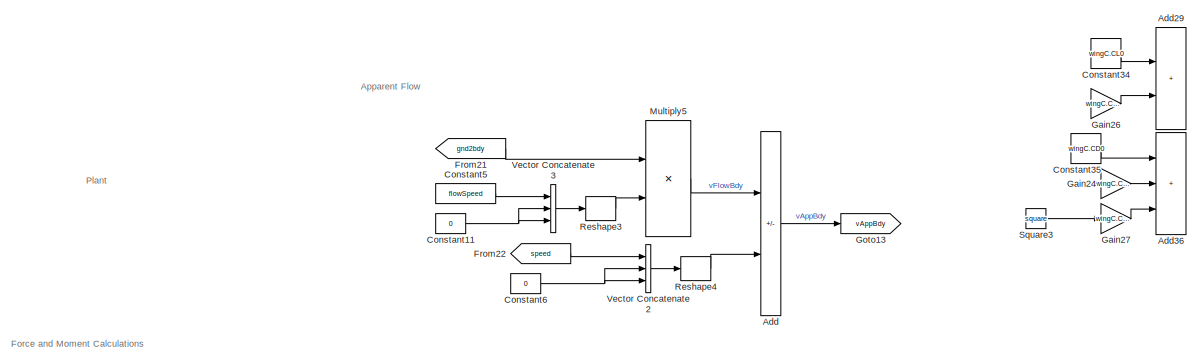
[diagram: root canvas - part 1/8, top center region]
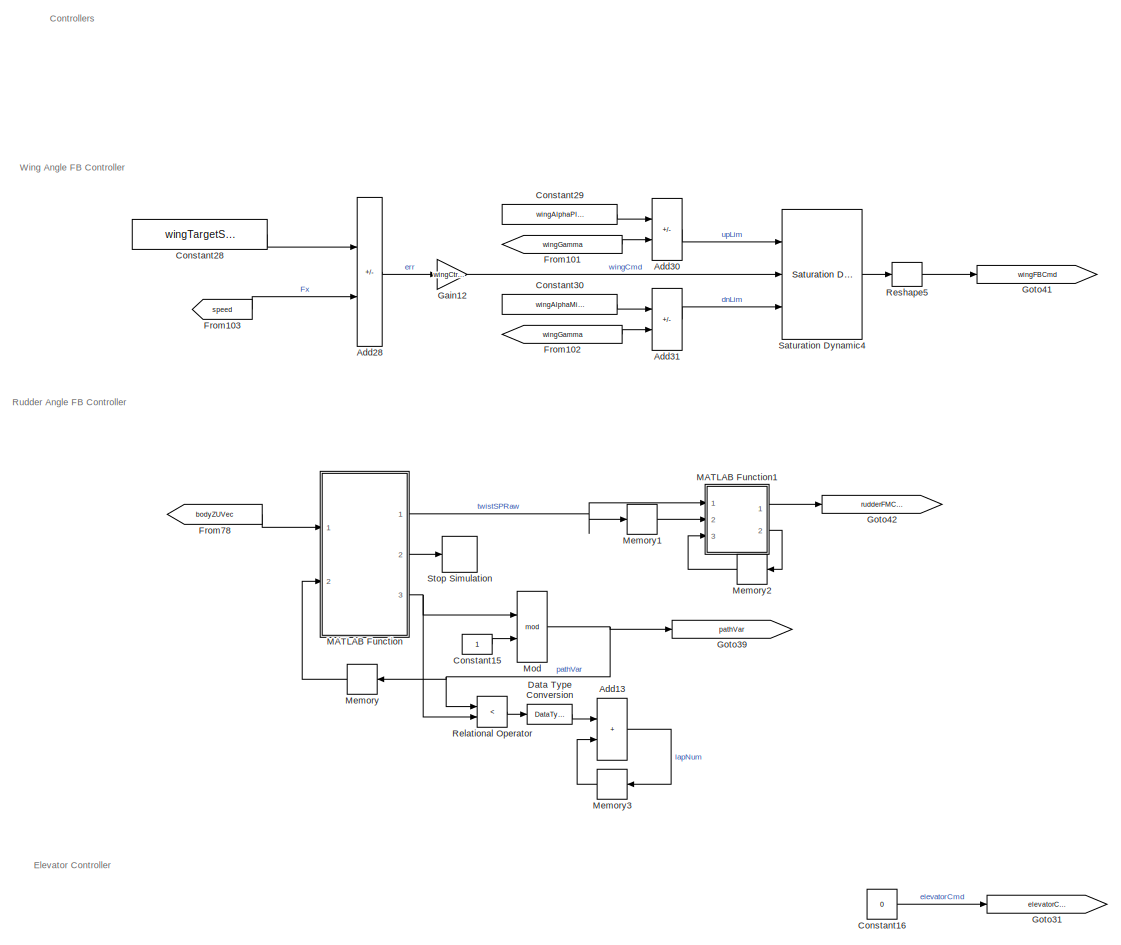
[diagram: root canvas - part 2/8, middle left region]
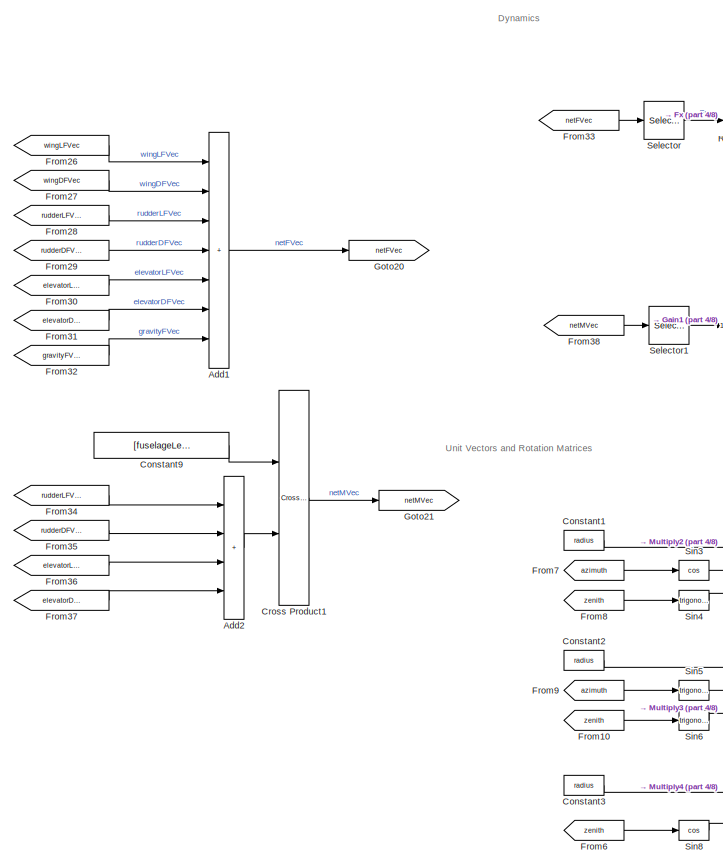
[diagram: root canvas - part 3/8, middle right region]
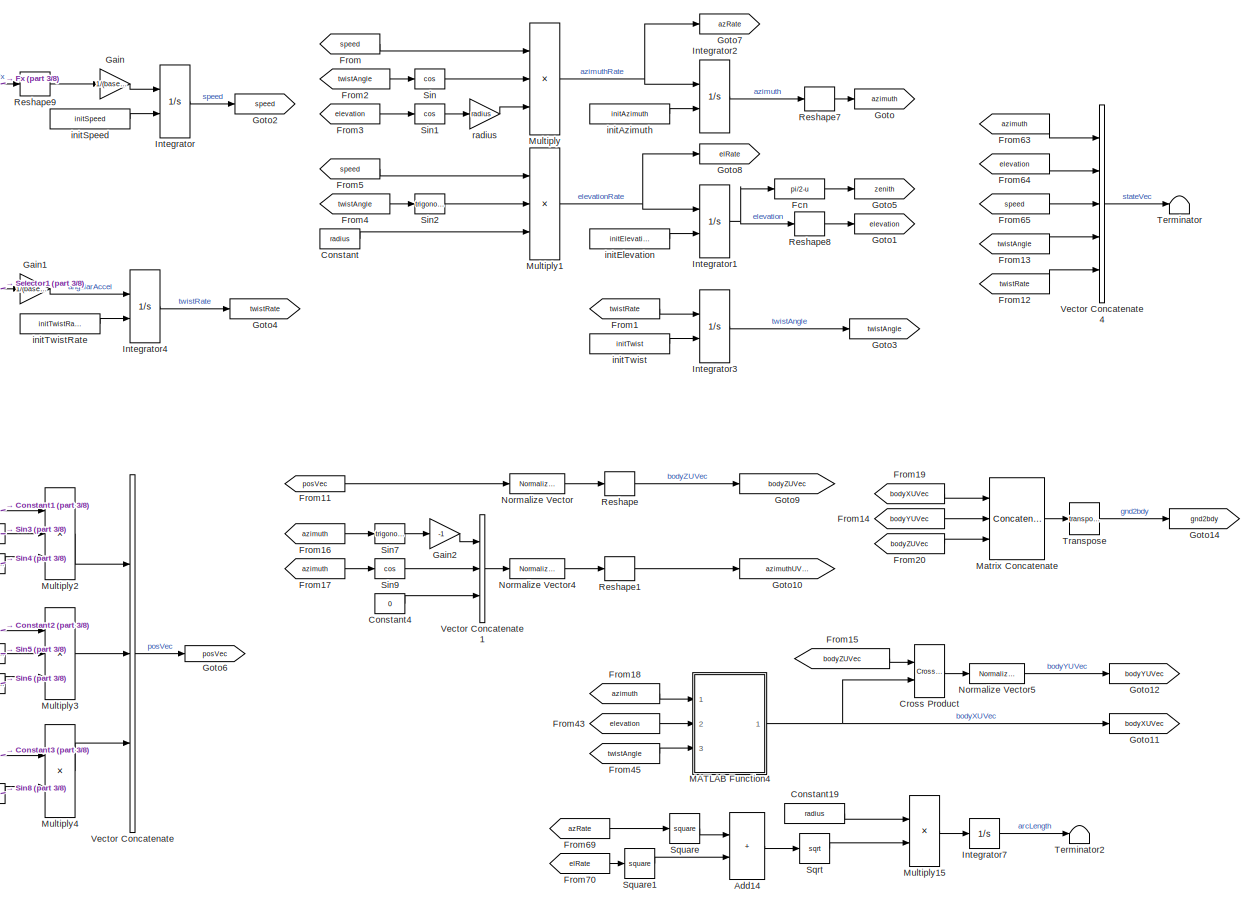
[diagram: root canvas - part 4/8, middle right region]
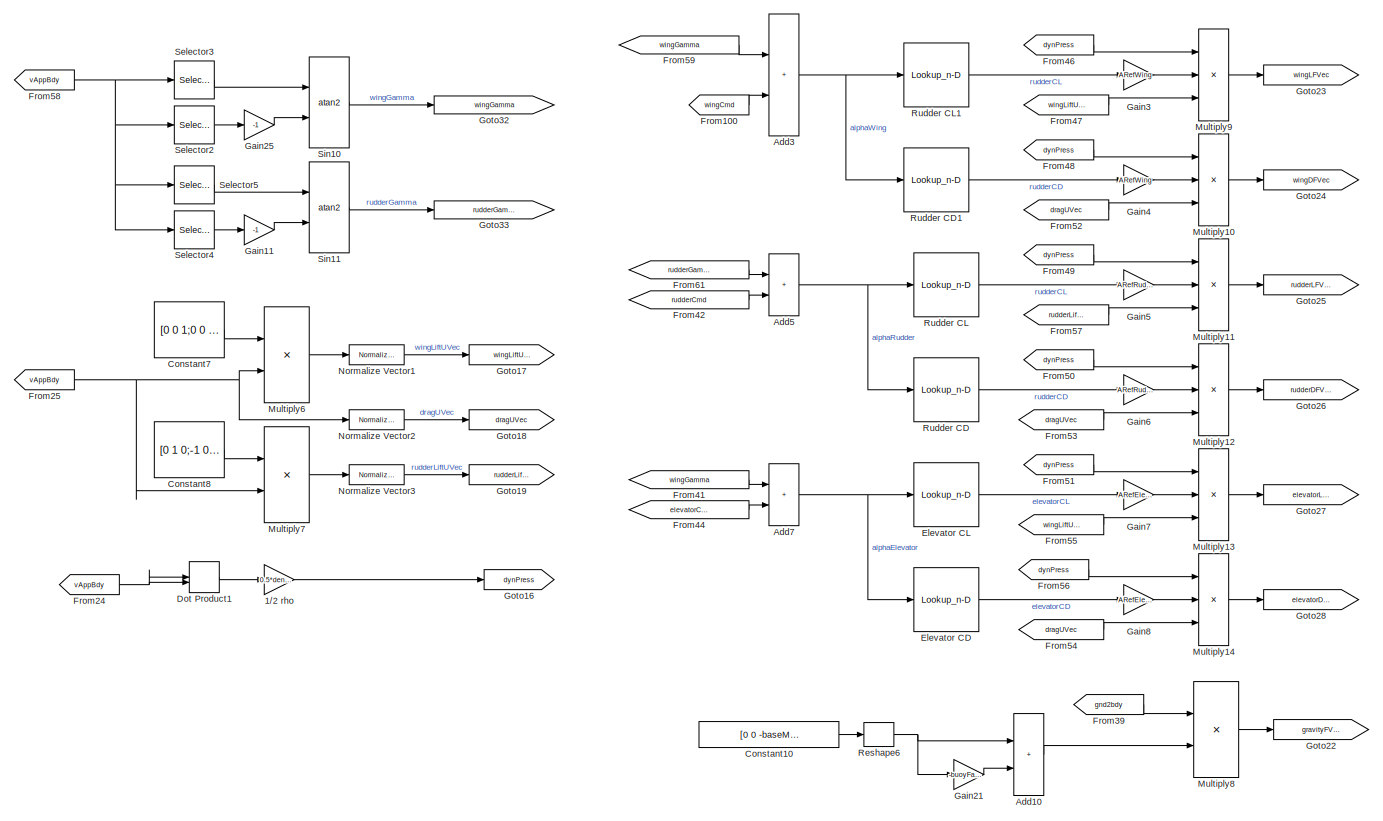
[diagram: root canvas - part 5/8, central region]
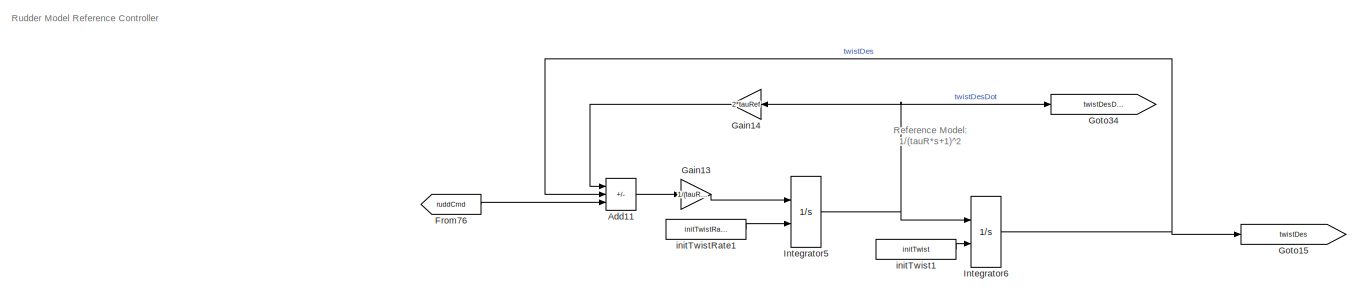
[diagram: root canvas - part 6/8, central region]
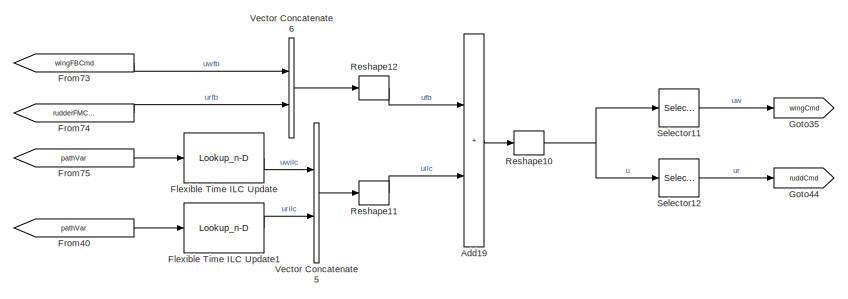
[diagram: root canvas - part 7/8, middle left region]
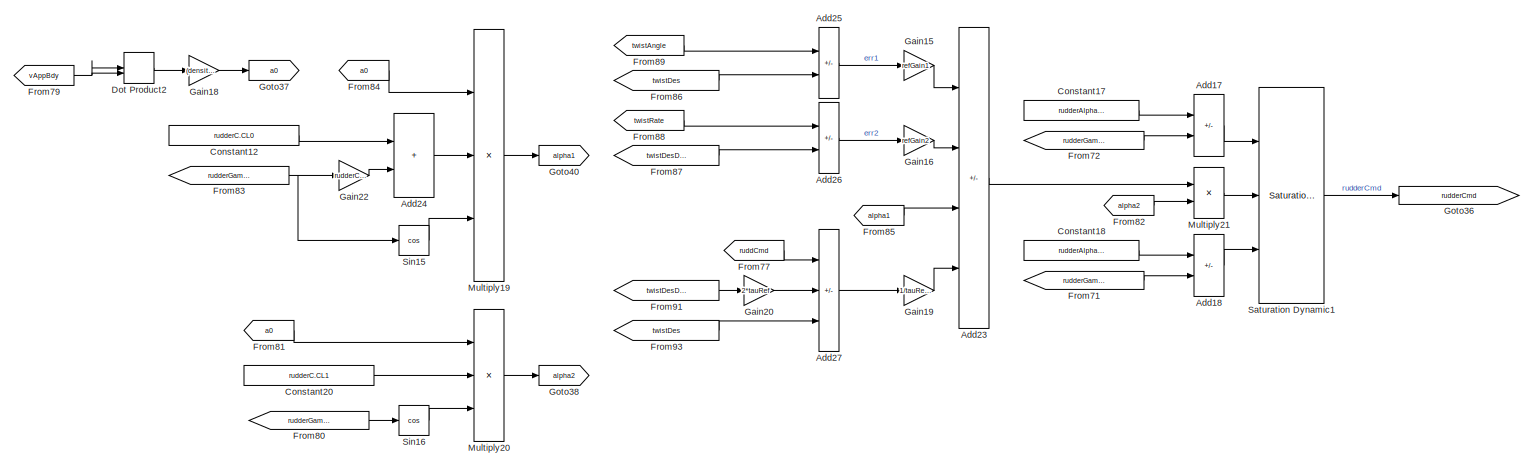
[diagram: root canvas - part 8/8, bottom center region]
MODEL slx_434c919a1d48
KIND model
CONFIG AbsTol = auto
CONFIG EnableMultiTasking = off
CONFIG FixedStep = auto
CONFIG MaxStep = auto
CONFIG MinStep = auto
CONFIG RelTol = 1e-3
CONFIG SampleTimeConstraint = Unconstrained
CONFIG Solver = ode23s
CONFIG SolverName = ode23s
CONFIG StartTime = 0.0
CONFIG StopTime = T
BLOCK [Gain] 1//2 rho
  Gain = 0.5*density
BLOCK [Sum] Add
  IconShape = rectangular
  Inputs = +-
  Ports = [2, 1]
BLOCK [Sum] Add1
  IconShape = rectangular
  Inputs = +++++++
  Ports = [7, 1]
BLOCK [Sum] Add10
  IconShape = rectangular
  Ports = [2, 1]
BLOCK [Sum] Add11
  IconShape = rectangular
  Inputs = --+
  Ports = [3, 1]
BLOCK [Sum] Add13
  IconShape = rectangular
  Ports = [2, 1]
BLOCK [Sum] Add14
  IconShape = rectangular
  Ports = [2, 1]
BLOCK [Sum] Add17
  IconShape = rectangular
  Inputs = +-
  Ports = [2, 1]
BLOCK [Sum] Add18
  IconShape = rectangular
  Inputs = +-
  Ports = [2, 1]
BLOCK [Sum] Add19
  IconShape = rectangular
  Ports = [2, 1]
BLOCK [Sum] Add2
  IconShape = rectangular
  Inputs = ++++
  Ports = [4, 1]
BLOCK [Sum] Add23
  IconShape = rectangular
  Inputs = ---+
  Ports = [4, 1]
BLOCK [Sum] Add24
  IconShape = rectangular
  Ports = [2, 1]
BLOCK [Sum] Add25
  IconShape = rectangular
  Inputs = +-
  Ports = [2, 1]
BLOCK [Sum] Add26
  IconShape = rectangular
  Inputs = +-
  Ports = [2, 1]
BLOCK [Sum] Add27
  IconShape = rectangular
  Inputs = +--
  Ports = [3, 1]
BLOCK [Sum] Add28
  IconShape = rectangular
  Inputs = +-
  Ports = [2, 1]
BLOCK [Sum] Add29
  Commented = on
  IconShape = rectangular
  Ports = [2, 1]
BLOCK [Sum] Add3
  IconShape = rectangular
  Ports = [2, 1]
BLOCK [Sum] Add30
  IconShape = rectangular
  Inputs = +-
  Ports = [2, 1]
BLOCK [Sum] Add31
  IconShape = rectangular
  Inputs = +-
  Ports = [2, 1]
BLOCK [Sum] Add36
  Commented = on
  IconShape = rectangular
  Inputs = +++
  Ports = [3, 1]
BLOCK [Sum] Add5
  IconShape = rectangular
  Ports = [2, 1]
BLOCK [Sum] Add7
  IconShape = rectangular
  Ports = [2, 1]
BLOCK [Constant] Constant
  Value = radius
BLOCK [Constant] Constant1
  Value = radius
BLOCK [Constant] Constant10
  Value = [0 0 -baseMass*9.81]
BLOCK [Constant] Constant11
  Value = 0
BLOCK [Constant] Constant12
  Value = rudderC.CL0
BLOCK [Constant] Constant15
BLOCK [Constant] Constant16
  Value = 0
BLOCK [Constant] Constant17
  Value = rudderAlphaPlusStall
BLOCK [Constant] Constant18
  Value = rudderAlphaMinusStall
BLOCK [Constant] Constant19
  Value = radius
BLOCK [Constant] Constant2
  Value = radius
BLOCK [Constant] Constant20
  Value = rudderC.CL1
BLOCK [Constant] Constant28
  Value = wingTargetSpeed
BLOCK [Constant] Constant29
  Value = wingAlphaPlusStall
BLOCK [Constant] Constant3
  Value = radius
BLOCK [Constant] Constant30
  Value = wingAlphaMinusStall
BLOCK [Constant] Constant34
  Commented = on
  Value = wingC.CL0
BLOCK [Constant] Constant35
  Commented = on
  Value = wingC.CD0
BLOCK [Constant] Constant4
  Commented = on
  Value = 0
BLOCK [Constant] Constant5
  Value = flowSpeed
BLOCK [Constant] Constant6
  Value = 0
BLOCK [Constant] Constant7
  Value = [0 0 1;0 0 0;-1 0 0]
BLOCK [Constant] Constant8
  Value = [0 1 0;-1 0 0;0 0 0]
BLOCK [Constant] Constant9
  Value = [fuselageLength 0 0]
BLOCK [Reference] Cross Product  REF=vrlib/Utilities/Cross Product
  Ports = [2, 1]
  SourceBlock = vrlib/Utilities/Cross Product
  SourceProductBaseCode = SL
  SourceType = Cross Product
BLOCK [Reference] Cross Product1  REF=vrlib/Utilities/Cross Product
  Ports = [2, 1]
  SourceBlock = vrlib/Utilities/Cross Product
  SourceProductBaseCode = SL
  SourceType = Cross Product
BLOCK [DataTypeConversion] Data Type Conversion
  OutDataTypeStr = double
  RndMeth = Floor
  SaturateOnIntegerOverflow = off
BLOCK [DotProduct] Dot Product1
  OutDataTypeStr = Inherit: Inherit via internal rule
BLOCK [DotProduct] Dot Product2
  OutDataTypeStr = Inherit: Inherit via internal rule
BLOCK [Lookup_n-D] Elevator CD
  BreakpointsForDimension1 = rudderTable.alpha
  InternalRulePriority = Speed
  NumberOfTableDimensions = 1
  Ports = [1, 1]
  RndMeth = Simplest
  Table = rudderTable.CD
BLOCK [Lookup_n-D] Elevator CL
  BreakpointsForDimension1 = rudderTable.alpha
  InternalRulePriority = Speed
  NumberOfTableDimensions = 1
  Ports = [1, 1]
  RndMeth = Simplest
  Table = rudderTable.CL
BLOCK [Fcn] Fcn
  Expr = pi/2-u
BLOCK [Lookup_n-D] Flexible Time ILC Update
  BeginIndexSearchUsingPreviousIndexResult = on
  BreakpointsForDimension1 = uwilcNext.Time(:)
  ExtrapMethod = Clip
  InternalRulePriority = Speed
  InterpMethod = Flat
  NumberOfTableDimensions = 1
  Ports = [1, 1]
  RndMeth = Simplest
  Table = uwilcNext.Data(:)
  UseLastTableValue = on
BLOCK [Lookup_n-D] Flexible Time ILC Update1
  BreakpointsForDimension1 = urilcNext.Time(:)
  ExtrapMethod = Clip
  InternalRulePriority = Speed
  InterpMethod = Flat
  NumberOfTableDimensions = 1
  Ports = [1, 1]
  RndMeth = Simplest
  Table = urilcNext.Data(:)
  UseLastTableValue = on
BLOCK [From] From
  GotoTag = speed
BLOCK [From] From1
  GotoTag = twistRate
BLOCK [From] From10
  GotoTag = zenith
BLOCK [From] From100
  GotoTag = wingCmd
BLOCK [From] From101
  GotoTag = wingGamma
BLOCK [From] From102
  GotoTag = wingGamma
BLOCK [From] From103
  GotoTag = speed
BLOCK [From] From11
  GotoTag = posVec
BLOCK [From] From12
  GotoTag = twistRate
BLOCK [From] From13
  GotoTag = twistAngle
BLOCK [From] From14
  GotoTag = bodyYUVec
BLOCK [From] From15
  GotoTag = bodyZUVec
BLOCK [From] From16
  Commented = on
  GotoTag = azimuth
BLOCK [From] From17
  Commented = on
  GotoTag = azimuth
BLOCK [From] From18
  GotoTag = azimuth
BLOCK [From] From19
  GotoTag = bodyXUVec
BLOCK [From] From2
  GotoTag = twistAngle
BLOCK [From] From20
  GotoTag = bodyZUVec
BLOCK [From] From21
  GotoTag = gnd2bdy
BLOCK [From] From22
  GotoTag = speed
BLOCK [From] From24
  GotoTag = vAppBdy
BLOCK [From] From25
  GotoTag = vAppBdy
BLOCK [From] From26
  GotoTag = wingLFVec
BLOCK [From] From27
  GotoTag = wingDFVec
BLOCK [From] From28
  GotoTag = rudderLFVec
BLOCK [From] From29
  GotoTag = rudderDFVec
BLOCK [From] From3
  GotoTag = elevation
BLOCK [From] From30
  GotoTag = elevatorLFVec
BLOCK [From] From31
  GotoTag = elevatorDFVec
BLOCK [From] From32
  GotoTag = gravityFVec
BLOCK [From] From33
  GotoTag = netFVec
BLOCK [From] From34
  GotoTag = rudderLFVec
BLOCK [From] From35
  GotoTag = rudderDFVec
BLOCK [From] From36
  GotoTag = elevatorLFVec
BLOCK [From] From37
  GotoTag = elevatorDFVec
BLOCK [From] From38
  GotoTag = netMVec
BLOCK [From] From39
  GotoTag = gnd2bdy
BLOCK [From] From4
  GotoTag = twistAngle
BLOCK [From] From40
  GotoTag = pathVar
BLOCK [From] From41
  GotoTag = wingGamma
BLOCK [From] From42
  GotoTag = rudderCmd
BLOCK [From] From43
  GotoTag = elevation
BLOCK [From] From44
  GotoTag = elevatorCmd
BLOCK [From] From45
  GotoTag = twistAngle
BLOCK [From] From46
  GotoTag = dynPress
BLOCK [From] From47
  GotoTag = wingLiftUVec
BLOCK [From] From48
  GotoTag = dynPress
BLOCK [From] From49
  GotoTag = dynPress
BLOCK [From] From5
  GotoTag = speed
BLOCK [From] From50
  GotoTag = dynPress
BLOCK [From] From51
  GotoTag = dynPress
BLOCK [From] From52
  GotoTag = dragUVec
BLOCK [From] From53
  GotoTag = dragUVec
BLOCK [From] From54
  GotoTag = dragUVec
BLOCK [From] From55
  GotoTag = wingLiftUVec
BLOCK [From] From56
  GotoTag = dynPress
BLOCK [From] From57
  GotoTag = rudderLiftUVec
BLOCK [From] From58
  GotoTag = vAppBdy
BLOCK [From] From59
  GotoTag = wingGamma
BLOCK [From] From6
  GotoTag = zenith
BLOCK [From] From61
  GotoTag = rudderGamma
BLOCK [From] From63
  GotoTag = azimuth
BLOCK [From] From64
  GotoTag = elevation
BLOCK [From] From65
  GotoTag = speed
BLOCK [From] From69
  GotoTag = azRate
BLOCK [From] From7
  GotoTag = azimuth
BLOCK [From] From70
  GotoTag = elRate
BLOCK [From] From71
  GotoTag = rudderGamma
BLOCK [From] From72
  GotoTag = rudderGamma
BLOCK [From] From73
  GotoTag = wingFBCmd
BLOCK [From] From74
  GotoTag = rudderFMCmd
BLOCK [From] From75
  GotoTag = pathVar
BLOCK [From] From76
  GotoTag = ruddCmd
BLOCK [From] From77
  GotoTag = ruddCmd
BLOCK [From] From78
  GotoTag = bodyZUVec
BLOCK [From] From79
  GotoTag = vAppBdy
BLOCK [From] From8
  GotoTag = zenith
BLOCK [From] From80
  GotoTag = rudderGamma
BLOCK [From] From81
  GotoTag = a0
BLOCK [From] From82
  GotoTag = alpha2
BLOCK [From] From83
  GotoTag = rudderGamma
BLOCK [From] From84
  GotoTag = a0
BLOCK [From] From85
  GotoTag = alpha1
BLOCK [From] From86
  GotoTag = twistDes
BLOCK [From] From87
  GotoTag = twistDesDot
BLOCK [From] From88
  GotoTag = twistRate
BLOCK [From] From89
  GotoTag = twistAngle
BLOCK [From] From9
  GotoTag = azimuth
BLOCK [From] From91
  GotoTag = twistDesDot
BLOCK [From] From93
  GotoTag = twistDes
BLOCK [Gain] Gain
  Gain = 1/(baseMass+addedMass)
BLOCK [Gain] Gain1
  Gain = 1/(baseInertia+addedInertia)
BLOCK [Gain] Gain11
  Gain = -1
BLOCK [Gain] Gain12
  AttributesFormatString = %<Gain>
  Gain = wingCtrlKp
BLOCK [Gain] Gain13
  Gain = 1/(tauRef^2)
BLOCK [Gain] Gain14
  Gain = 2*tauRef
BLOCK [Gain] Gain15
  AttributesFormatString = %<Gain>
  Gain = refGain1
BLOCK [Gain] Gain16
  AttributesFormatString = %<Gain>
  Gain = refGain2
BLOCK [Gain] Gain18
  Gain = (density*ARefRudder*fuselageLength)/(2*baseInertia+2*addedInertia)
BLOCK [Gain] Gain19
  AttributesFormatString = %<Gain>
  Gain = 1/tauRef^2
BLOCK [Gain] Gain2
  Commented = on
  Gain = -1
BLOCK [Gain] Gain20
  Gain = 2*tauRef
BLOCK [Gain] Gain21
  AttributesFormatString = %<Gain>
  Gain = -buoyFactor
BLOCK [Gain] Gain22
  Gain = rudderC.CL1
BLOCK [Gain] Gain24
  Commented = on
  Gain = wingC.CD1
BLOCK [Gain] Gain25
  Gain = -1
BLOCK [Gain] Gain26
  Commented = on
  Gain = wingC.CL1
BLOCK [Gain] Gain27
  Commented = on
  Gain = wingC.CD2
BLOCK [Gain] Gain3
  AttributesFormatString = %<Gain>
  Gain = ARefWing
BLOCK [Gain] Gain4
  AttributesFormatString = %<Gain>
  Gain = ARefWing
BLOCK [Gain] Gain5
  AttributesFormatString = %<Gain>
  Gain = ARefRudder
BLOCK [Gain] Gain6
  AttributesFormatString = %<Gain>
  Gain = ARefRudder
BLOCK [Gain] Gain7
  AttributesFormatString = %<Gain>
  Gain = ARefElevator
BLOCK [Gain] Gain8
  AttributesFormatString = %<Gain>
  Gain = ARefElevator
BLOCK [Goto] Goto
  GotoTag = azimuth
BLOCK [Goto] Goto1
  GotoTag = elevation
BLOCK [Goto] Goto10
  Commented = on
  GotoTag = azimuthUVec
BLOCK [Goto] Goto11
  GotoTag = bodyXUVec
BLOCK [Goto] Goto12
  GotoTag = bodyYUVec
BLOCK [Goto] Goto13
  GotoTag = vAppBdy
BLOCK [Goto] Goto14
  GotoTag = gnd2bdy
BLOCK [Goto] Goto15
  GotoTag = twistDes
BLOCK [Goto] Goto16
  GotoTag = dynPress
BLOCK [Goto] Goto17
  GotoTag = wingLiftUVec
BLOCK [Goto] Goto18
  GotoTag = dragUVec
BLOCK [Goto] Goto19
  GotoTag = rudderLiftUVec
BLOCK [Goto] Goto2
  GotoTag = speed
BLOCK [Goto] Goto20
  GotoTag = netFVec
BLOCK [Goto] Goto21
  GotoTag = netMVec
BLOCK [Goto] Goto22
  GotoTag = gravityFVec
BLOCK [Goto] Goto23
  GotoTag = wingLFVec
BLOCK [Goto] Goto24
  GotoTag = wingDFVec
BLOCK [Goto] Goto25
  GotoTag = rudderLFVec
BLOCK [Goto] Goto26
  GotoTag = rudderDFVec
BLOCK [Goto] Goto27
  GotoTag = elevatorLFVec
BLOCK [Goto] Goto28
  GotoTag = elevatorDFVec
BLOCK [Goto] Goto3
  GotoTag = twistAngle
BLOCK [Goto] Goto31
  GotoTag = elevatorCmd
BLOCK [Goto] Goto32
  GotoTag = wingGamma
BLOCK [Goto] Goto33
  GotoTag = rudderGamma
BLOCK [Goto] Goto34
  GotoTag = twistDesDot
BLOCK [Goto] Goto35
  GotoTag = wingCmd
BLOCK [Goto] Goto36
  GotoTag = rudderCmd
BLOCK [Goto] Goto37
  GotoTag = a0
BLOCK [Goto] Goto38
  GotoTag = alpha2
BLOCK [Goto] Goto39
  GotoTag = pathVar
BLOCK [Goto] Goto4
  GotoTag = twistRate
BLOCK [Goto] Goto40
  GotoTag = alpha1
BLOCK [Goto] Goto41
  GotoTag = wingFBCmd
BLOCK [Goto] Goto42
  GotoTag = rudderFMCmd
BLOCK [Goto] Goto44
  GotoTag = ruddCmd
BLOCK [Goto] Goto5
  GotoTag = zenith
BLOCK [Goto] Goto6
  GotoTag = posVec
BLOCK [Goto] Goto7
  GotoTag = azRate
BLOCK [Goto] Goto8
  GotoTag = elRate
BLOCK [Goto] Goto9
  GotoTag = bodyZUVec
BLOCK [Integrator] Integrator
  InitialConditionSource = external
  Ports = [2, 1]
BLOCK [Integrator] Integrator1
  InitialConditionSource = external
  Ports = [2, 1]
BLOCK [Integrator] Integrator2
  InitialConditionSource = external
  Ports = [2, 1]
BLOCK [Integrator] Integrator3
  InitialConditionSource = external
  Ports = [2, 1]
BLOCK [Integrator] Integrator4
  InitialConditionSource = external
  Ports = [2, 1]
BLOCK [Integrator] Integrator5
  InitialConditionSource = external
  Ports = [2, 1]
BLOCK [Integrator] Integrator6
  InitialCondition = p.initTwist
  InitialConditionSource = external
  Ports = [2, 1]
BLOCK [Integrator] Integrator7
  Ports = [1, 1]
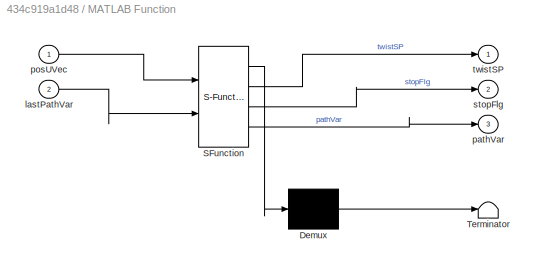
BLOCK [SubSystem] MATLAB Function
  ErrorFcn = Stateflow.Translate.translate
  PermitHierarchicalResolution = ExplicitOnly
  Ports = [2, 3]
  RequestExecContextInheritance = off
  SFBlockType = MATLAB Function
  TreatAsAtomicUnit = on
BLOCK [Demux] MATLAB Function/ Demux 
  Outputs = 1
  Ports = [1, 1]
BLOCK [S-Function] MATLAB Function/ SFunction 
  EnableBusSupport = on
  FunctionName = sf_sfun
  Parameters = basisParams,maxIntAngle,maxLeadLength
  PortCounts = [2 4]
  Ports = [2, 4]
  SFcnIsStateOwnerBlock = off
  SFunctionDeploymentMode = off
  Tag = Stateflow S-Function 2
BLOCK [Terminator] MATLAB Function/ Terminator 
BLOCK [Inport] MATLAB Function/lastPathVar
  Port = 2
BLOCK [Outport] MATLAB Function/pathVar
  Port = 3
  VectorParamsAs1DForOutWhenUnconnected = off
BLOCK [Inport] MATLAB Function/posUVec
BLOCK [Outport] MATLAB Function/stopFlg
  Port = 2
  VectorParamsAs1DForOutWhenUnconnected = off
BLOCK [Outport] MATLAB Function/twistSP
  VectorParamsAs1DForOutWhenUnconnected = off
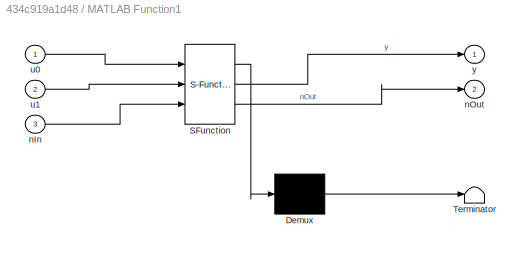
BLOCK [SubSystem] MATLAB Function1
  ErrorFcn = Stateflow.Translate.translate
  PermitHierarchicalResolution = ExplicitOnly
  Ports = [3, 2]
  RequestExecContextInheritance = off
  SFBlockType = MATLAB Function
  TreatAsAtomicUnit = on
BLOCK [Demux] MATLAB Function1/ Demux 
  Outputs = 1
  Ports = [1, 1]
BLOCK [S-Function] MATLAB Function1/ SFunction 
  EnableBusSupport = on
  FunctionName = sf_sfun
  PortCounts = [3 3]
  Ports = [3, 3]
  SFcnIsStateOwnerBlock = off
  SFunctionDeploymentMode = off
  Tag = Stateflow S-Function 1
BLOCK [Terminator] MATLAB Function1/ Terminator 
BLOCK [Inport] MATLAB Function1/nIn
  Port = 3
BLOCK [Outport] MATLAB Function1/nOut
  Port = 2
  VectorParamsAs1DForOutWhenUnconnected = off
BLOCK [Inport] MATLAB Function1/u0
BLOCK [Inport] MATLAB Function1/u1
  Port = 2
BLOCK [Outport] MATLAB Function1/y
  VectorParamsAs1DForOutWhenUnconnected = off
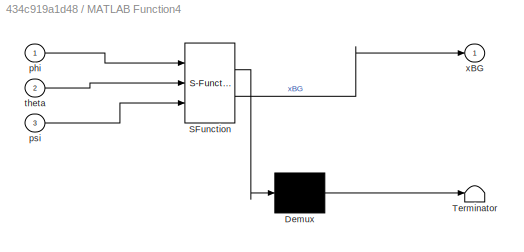
BLOCK [SubSystem] MATLAB Function4
  ErrorFcn = Stateflow.Translate.translate
  PermitHierarchicalResolution = ExplicitOnly
  Ports = [3, 1]
  RequestExecContextInheritance = off
  SFBlockType = MATLAB Function
  TreatAsAtomicUnit = on
BLOCK [Demux] MATLAB Function4/ Demux 
  Outputs = 1
  Ports = [1, 1]
BLOCK [S-Function] MATLAB Function4/ SFunction 
  EnableBusSupport = on
  FunctionName = sf_sfun
  PortCounts = [3 2]
  Ports = [3, 2]
  SFcnIsStateOwnerBlock = off
  SFunctionDeploymentMode = off
  Tag = Stateflow S-Function 5
BLOCK [Terminator] MATLAB Function4/ Terminator 
BLOCK [Inport] MATLAB Function4/phi
BLOCK [Inport] MATLAB Function4/psi
  Port = 3
BLOCK [Inport] MATLAB Function4/theta
  Port = 2
BLOCK [Outport] MATLAB Function4/xBG
  VectorParamsAs1DForOutWhenUnconnected = off
BLOCK [Concatenate] Matrix Concatenate
  ConcatenateDimension = 2
  Mode = Multidimensional array
  NumInputs = 3
  Ports = [3, 1]
BLOCK [Memory] Memory
  InitialCondition = initPathVar
BLOCK [Memory] Memory1
  InitialCondition = initTwist
BLOCK [Memory] Memory2
BLOCK [Memory] Memory3
  InitialCondition = 1
BLOCK [Math] Mod
  Operator = mod
  Ports = [2, 1]
  SignedPower = on
BLOCK [Product] Multiply
  Inputs = **/
  Ports = [3, 1]
BLOCK [Product] Multiply1
  Inputs = **/
  Ports = [3, 1]
BLOCK [Product] Multiply10
  Inputs = 3
  Ports = [3, 1]
BLOCK [Product] Multiply11
  Inputs = 3
  Ports = [3, 1]
BLOCK [Product] Multiply12
  Inputs = 3
  Ports = [3, 1]
BLOCK [Product] Multiply13
  Inputs = 3
  Ports = [3, 1]
BLOCK [Product] Multiply14
  Inputs = 3
  Ports = [3, 1]
BLOCK [Product] Multiply15
  Ports = [2, 1]
BLOCK [Product] Multiply19
  Inputs = 3
  Ports = [3, 1]
BLOCK [Product] Multiply2
  Inputs = 3
  Ports = [3, 1]
BLOCK [Product] Multiply20
  Inputs = 3
  Ports = [3, 1]
BLOCK [Product] Multiply21
  Inputs = */
  Ports = [2, 1]
BLOCK [Product] Multiply3
  Inputs = 3
  Ports = [3, 1]
BLOCK [Product] Multiply4
  Ports = [2, 1]
BLOCK [Product] Multiply5
  Multiplication = Matrix(*)
  Ports = [2, 1]
BLOCK [Product] Multiply6
  Multiplication = Matrix(*)
  Ports = [2, 1]
BLOCK [Product] Multiply7
  Multiplication = Matrix(*)
  Ports = [2, 1]
BLOCK [Product] Multiply8
  Multiplication = Matrix(*)
  Ports = [2, 1]
BLOCK [Product] Multiply9
  Inputs = 3
  Ports = [3, 1]
BLOCK [Reference] Normalize Vector  REF=vrlib/Utilities/Normalize Vector
  Ports = [1, 1]
  SourceBlock = vrlib/Utilities/Normalize Vector
  SourceProductBaseCode = SL
  SourceType = Normalize Vector
BLOCK [Reference] Normalize Vector1  REF=vrlib/Utilities/Normalize Vector
  Ports = [1, 1]
  SourceBlock = vrlib/Utilities/Normalize Vector
  SourceProductBaseCode = SL
  SourceType = Normalize Vector
BLOCK [Reference] Normalize Vector2  REF=vrlib/Utilities/Normalize Vector
  Ports = [1, 1]
  SourceBlock = vrlib/Utilities/Normalize Vector
  SourceProductBaseCode = SL
  SourceType = Normalize Vector
BLOCK [Reference] Normalize Vector3  REF=vrlib/Utilities/Normalize Vector
  Ports = [1, 1]
  SourceBlock = vrlib/Utilities/Normalize Vector
  SourceProductBaseCode = SL
  SourceType = Normalize Vector
BLOCK [Reference] Normalize Vector4  REF=vrlib/Utilities/Normalize Vector
  Commented = on
  Ports = [1, 1]
  SourceBlock = vrlib/Utilities/Normalize Vector
  SourceProductBaseCode = SL
  SourceType = Normalize Vector
BLOCK [Reference] Normalize Vector5  REF=vrlib/Utilities/Normalize Vector
  Ports = [1, 1]
  SourceBlock = vrlib/Utilities/Normalize Vector
  SourceProductBaseCode = SL
  SourceType = Normalize Vector
BLOCK [RelationalOperator] Relational Operator
  InputSameDT = off
  Operator = <
  OutDataTypeStr = boolean
  Ports = [2, 1]
  RndMeth = Simplest
BLOCK [Reshape] Reshape
  OutputDimensionality = Column vector (2-D)
  Ports = [1, 1]
BLOCK [Reshape] Reshape1
  Commented = on
  OutputDimensionality = Column vector (2-D)
  Ports = [1, 1]
BLOCK [Reshape] Reshape10
  OutputDimensionality = Column vector (2-D)
  Ports = [1, 1]
BLOCK [Reshape] Reshape11
  OutputDimensionality = Column vector (2-D)
  Ports = [1, 1]
BLOCK [Reshape] Reshape12
  OutputDimensionality = Column vector (2-D)
  Ports = [1, 1]
BLOCK [Reshape] Reshape3
  OutputDimensionality = Column vector (2-D)
  Ports = [1, 1]
BLOCK [Reshape] Reshape4
  OutputDimensionality = Column vector (2-D)
  Ports = [1, 1]
BLOCK [Reshape] Reshape5
  Ports = [1, 1]
BLOCK [Reshape] Reshape6
  OutputDimensionality = Column vector (2-D)
  Ports = [1, 1]
BLOCK [Reshape] Reshape7
  Ports = [1, 1]
BLOCK [Reshape] Reshape8
  Ports = [1, 1]
BLOCK [Reshape] Reshape9
  Ports = [1, 1]
BLOCK [Lookup_n-D] Rudder CD
  BreakpointsForDimension1 = rudderTable.alpha
  InternalRulePriority = Speed
  NumberOfTableDimensions = 1
  Ports = [1, 1]
  RndMeth = Simplest
  Table = rudderTable.CD
BLOCK [Lookup_n-D] Rudder CD1
  BreakpointsForDimension1 = wingTable.alpha
  InternalRulePriority = Speed
  NumberOfTableDimensions = 1
  Ports = [1, 1]
  RndMeth = Simplest
  Table = wingTable.CD
BLOCK [Lookup_n-D] Rudder CL
  BreakpointsForDimension1 = rudderTable.alpha
  InternalRulePriority = Speed
  NumberOfTableDimensions = 1
  Ports = [1, 1]
  RndMeth = Simplest
  Table = rudderTable.CL
BLOCK [Lookup_n-D] Rudder CL1
  BreakpointsForDimension1 = wingTable.alpha
  InternalRulePriority = Speed
  NumberOfTableDimensions = 1
  Ports = [1, 1]
  RndMeth = Simplest
  Table = wingTable.CL
BLOCK [Reference] Saturation Dynamic1  REF=simulink/Discontinuities/Saturation
Dynamic
  Ports = [3, 1]
  SourceBlock = simulink/Discontinuities/Saturation\nDynamic
  SourceProductBaseCode = SL
  SourceType = Saturation Dynamic
BLOCK [Reference] Saturation Dynamic4  REF=simulink/Discontinuities/Saturation
Dynamic
  Ports = [3, 1]
  SourceBlock = simulink/Discontinuities/Saturation\nDynamic
  SourceProductBaseCode = SL
  SourceType = Saturation Dynamic
BLOCK [Selector] Selector
  IndexOptions = Index vector (dialog)
  Indices = 1
  InputPortWidth = 3
  OutputSizes = 1
  Ports = [1, 1]
BLOCK [Selector] Selector1
  IndexOptions = Index vector (dialog)
  Indices = 3
  InputPortWidth = 3
  OutputSizes = 1
  Ports = [1, 1]
BLOCK [Selector] Selector11
  IndexOptions = Index vector (dialog)
  Indices = 1
  InputPortWidth = 2
  OutputSizes = 1
  Ports = [1, 1]
BLOCK [Selector] Selector12
  IndexOptions = Index vector (dialog)
  Indices = 2
  InputPortWidth = 2
  OutputSizes = 1
  Ports = [1, 1]
BLOCK [Selector] Selector2
  IndexOptions = Index vector (dialog)
  Indices = 1
  InputPortWidth = 3
  OutputSizes = 1
  Ports = [1, 1]
BLOCK [Selector] Selector3
  IndexOptions = Index vector (dialog)
  Indices = 3
  InputPortWidth = 3
  OutputSizes = 1
  Ports = [1, 1]
BLOCK [Selector] Selector4
  IndexOptions = Index vector (dialog)
  Indices = 1
  InputPortWidth = 3
  OutputSizes = 1
  Ports = [1, 1]
BLOCK [Selector] Selector5
  IndexOptions = Index vector (dialog)
  Indices = 2
  InputPortWidth = 3
  OutputSizes = 1
  Ports = [1, 1]
BLOCK [Trigonometry] Sin
  Operator = cos
  Ports = [1, 1]
BLOCK [Trigonometry] Sin1
  Operator = cos
  Ports = [1, 1]
BLOCK [Trigonometry] Sin10
  Operator = atan2
  Ports = [2, 1]
BLOCK [Trigonometry] Sin11
  Operator = atan2
  Ports = [2, 1]
BLOCK [Trigonometry] Sin15
  Operator = cos
  Ports = [1, 1]
BLOCK [Trigonometry] Sin16
  Operator = cos
  Ports = [1, 1]
BLOCK [Trigonometry] Sin2
  Ports = [1, 1]
BLOCK [Trigonometry] Sin3
  Operator = cos
  Ports = [1, 1]
BLOCK [Trigonometry] Sin4
  Ports = [1, 1]
BLOCK [Trigonometry] Sin5
  Ports = [1, 1]
BLOCK [Trigonometry] Sin6
  Ports = [1, 1]
BLOCK [Trigonometry] Sin7
  Commented = on
  Ports = [1, 1]
BLOCK [Trigonometry] Sin8
  Operator = cos
  Ports = [1, 1]
BLOCK [Trigonometry] Sin9
  Commented = on
  Operator = cos
  Ports = [1, 1]
BLOCK [Sqrt] Sqrt
BLOCK [Math] Square
  Operator = square
  Ports = [1, 1]
  SignedPower = on
BLOCK [Math] Square1
  Operator = square
  Ports = [1, 1]
  SignedPower = on
BLOCK [Math] Square3
  Commented = on
  Operator = square
  Ports = [1, 1]
  SignedPower = on
BLOCK [Stop] Stop Simulation
BLOCK [Terminator] Terminator
BLOCK [Terminator] Terminator2
BLOCK [Math] Transpose
  Operator = transpose
  Ports = [1, 1]
  SignedPower = on
BLOCK [Concatenate] Vector Concatenate
  Mode = Multidimensional array
  NumInputs = 3
  Ports = [3, 1]
BLOCK [Concatenate] Vector Concatenate1
  Commented = on
  NumInputs = 3
  Ports = [3, 1]
BLOCK [Concatenate] Vector Concatenate2
  NumInputs = 3
  Ports = [3, 1]
BLOCK [Concatenate] Vector Concatenate3
  NumInputs = 3
  Ports = [3, 1]
BLOCK [Concatenate] Vector Concatenate4
  Mode = Multidimensional array
  NumInputs = 5
  Ports = [5, 1]
BLOCK [Concatenate] Vector Concatenate5
  Ports = [2, 1]
BLOCK [Concatenate] Vector Concatenate6
  Ports = [2, 1]
BLOCK [Constant] initAzimuth
  Value = initAzimuth
BLOCK [Constant] initElevation
  Value = initElevation
BLOCK [Constant] initSpeed
  Value = initSpeed
BLOCK [Constant] initTwist
  Value = initTwist
BLOCK [Constant] initTwist1
  Value = initTwist
BLOCK [Constant] initTwistRate
  Value = initTwistRate
BLOCK [Constant] initTwistRate1
  Value = initTwistRate
BLOCK [Gain] radius
  Gain = radius
ANNOTATION (root): Reference Model: 1/(tauR*s+1)^2
ANNOTATION (root): Controllers
ANNOTATION (root): Plant
ANNOTATION (root): Apparent Flow
ANNOTATION (root): Dynamics
ANNOTATION (root): Elevator Controller
ANNOTATION (root): Force and Moment Calculations
ANNOTATION (root): Rudder Angle FB Controller
ANNOTATION (root): Rudder Model Reference Controller
ANNOTATION (root): Unit Vectors and Rotation Matrices
ANNOTATION (root): Wing Angle FB Controller
LINE 1//2 rho:1 -> Goto16:1
LINE Add10:1 -> Multiply8:2
LINE Add11:1 -> Gain13:1
LINE Add13:1 -> Memory3:1
LINE Add14:1 -> Sqrt:1
LINE Add17:1 -> Saturation Dynamic1:1
LINE Add18:1 -> Saturation Dynamic1:3
LINE Add19:1 -> Reshape10:1
LINE Add1:1 -> Goto20:1
LINE Add23:1 -> Multiply21:1
LINE Add24:1 -> Multiply19:2
LINE Add25:1 -> Gain15:1
LINE Add26:1 -> Gain16:1
LINE Add27:1 -> Gain19:1
LINE Add28:1 -> Gain12:1
LINE Add2:1 -> Cross Product1:2
LINE Add30:1 -> Saturation Dynamic4:1
LINE Add31:1 -> Saturation Dynamic4:3
NET Add3:1 -> Rudder CD1:1, Rudder CL1:1
NET Add5:1 -> Rudder CD:1, Rudder CL:1
NET Add7:1 -> Elevator CD:1, Elevator CL:1
LINE Add:1 -> Goto13:1
LINE Constant10:1 -> Reshape6:1
NET Constant11:1 -> Vector Concatenate3:2, Vector Concatenate3:3
LINE Constant12:1 -> Add24:1
LINE Constant15:1 -> Mod:2
LINE Constant16:1 -> Goto31:1
LINE Constant17:1 -> Add17:1
LINE Constant18:1 -> Add18:1
LINE Constant19:1 -> Multiply15:1
LINE Constant1:1 -> Multiply2:1
LINE Constant20:1 -> Multiply20:2
LINE Constant28:1 -> Add28:1
LINE Constant29:1 -> Add30:1
LINE Constant2:1 -> Multiply3:1
LINE Constant30:1 -> Add31:1
LINE Constant34:1 -> Add29:1
LINE Constant35:1 -> Add36:1
LINE Constant3:1 -> Multiply4:1
LINE Constant4:1 -> Vector Concatenate1:3
LINE Constant5:1 -> Vector Concatenate3:1
NET Constant6:1 -> Vector Concatenate2:2, Vector Concatenate2:3
LINE Constant7:1 -> Multiply6:1
LINE Constant8:1 -> Multiply7:1
LINE Constant9:1 -> Cross Product1:1
LINE Constant:1 -> Multiply1:3
LINE Cross Product1:1 -> Goto21:1
LINE Cross Product:1 -> Normalize Vector5:1
LINE Data Type Conversion:1 -> Add13:1
LINE Dot Product1:1 -> 1//2 rho:1
LINE Dot Product2:1 -> Gain18:1
LINE Elevator CD:1 -> Gain8:1
LINE Elevator CL:1 -> Gain7:1
LINE Fcn:1 -> Goto5:1
LINE Flexible Time ILC Update1:1 -> Vector Concatenate5:2
LINE Flexible Time ILC Update:1 -> Vector Concatenate5:1
LINE From100:1 -> Add3:2
LINE From101:1 -> Add30:2
LINE From102:1 -> Add31:2
LINE From103:1 -> Add28:2
LINE From10:1 -> Sin6:1
LINE From11:1 -> Normalize Vector:1
LINE From12:1 -> Vector Concatenate4:5
LINE From13:1 -> Vector Concatenate4:4
LINE From14:1 -> Matrix Concatenate:2
LINE From15:1 -> Cross Product:1
LINE From16:1 -> Sin7:1
LINE From17:1 -> Sin9:1
LINE From18:1 -> MATLAB Function4:1
LINE From19:1 -> Matrix Concatenate:1
LINE From1:1 -> Integrator3:1
LINE From20:1 -> Matrix Concatenate:3
LINE From21:1 -> Multiply5:1
LINE From22:1 -> Vector Concatenate2:1
NET From24:1 -> Dot Product1:1, Dot Product1:2
NET From25:1 -> Multiply6:2, Multiply7:2, Normalize Vector2:1
LINE From26:1 -> Add1:1
LINE From27:1 -> Add1:2
LINE From28:1 -> Add1:3
LINE From29:1 -> Add1:4
LINE From2:1 -> Sin:1
LINE From30:1 -> Add1:5
LINE From31:1 -> Add1:6
LINE From32:1 -> Add1:7
LINE From33:1 -> Selector:1
LINE From34:1 -> Add2:1
LINE From35:1 -> Add2:2
LINE From36:1 -> Add2:3
LINE From37:1 -> Add2:4
LINE From38:1 -> Selector1:1
LINE From39:1 -> Multiply8:1
LINE From3:1 -> Sin1:1
LINE From40:1 -> Flexible Time ILC Update1:1
LINE From41:1 -> Add7:1
LINE From42:1 -> Add5:2
LINE From43:1 -> MATLAB Function4:2
LINE From44:1 -> Add7:2
LINE From45:1 -> MATLAB Function4:3
LINE From46:1 -> Multiply9:1
LINE From47:1 -> Multiply9:3
LINE From48:1 -> Multiply10:1
LINE From49:1 -> Multiply11:1
LINE From4:1 -> Sin2:1
LINE From50:1 -> Multiply12:1
LINE From51:1 -> Multiply13:1
LINE From52:1 -> Multiply10:3
LINE From53:1 -> Multiply12:3
LINE From54:1 -> Multiply14:3
LINE From55:1 -> Multiply13:3
LINE From56:1 -> Multiply14:1
LINE From57:1 -> Multiply11:3
NET From58:1 -> Selector2:1, Selector3:1, Selector4:1, Selector5:1
LINE From59:1 -> Add3:1
LINE From5:1 -> Multiply1:1
LINE From61:1 -> Add5:1
LINE From63:1 -> Vector Concatenate4:1
LINE From64:1 -> Vector Concatenate4:2
LINE From65:1 -> Vector Concatenate4:3
LINE From69:1 -> Square:1
LINE From6:1 -> Sin8:1
LINE From70:1 -> Square1:1
LINE From71:1 -> Add18:2
LINE From72:1 -> Add17:2
LINE From73:1 -> Vector Concatenate6:1
LINE From74:1 -> Vector Concatenate6:2
LINE From75:1 -> Flexible Time ILC Update:1
LINE From76:1 -> Add11:3
LINE From77:1 -> Add27:1
LINE From78:1 -> MATLAB Function:1
NET From79:1 -> Dot Product2:1, Dot Product2:2
LINE From7:1 -> Sin3:1
LINE From80:1 -> Sin16:1
LINE From81:1 -> Multiply20:1
LINE From82:1 -> Multiply21:2
NET From83:1 -> Gain22:1, Sin15:1
LINE From84:1 -> Multiply19:1
LINE From85:1 -> Add23:3
LINE From86:1 -> Add25:2
LINE From87:1 -> Add26:2
LINE From88:1 -> Add26:1
LINE From89:1 -> Add25:1
LINE From8:1 -> Sin4:1
LINE From91:1 -> Gain20:1
LINE From93:1 -> Add27:3
LINE From9:1 -> Sin5:1
LINE From:1 -> Multiply:1
LINE Gain11:1 -> Sin11:2
LINE Gain12:1 -> Saturation Dynamic4:2
LINE Gain13:1 -> Integrator5:1
LINE Gain14:1 -> Add11:1
LINE Gain15:1 -> Add23:1
LINE Gain16:1 -> Add23:2
LINE Gain18:1 -> Goto37:1
LINE Gain19:1 -> Add23:4
LINE Gain1:1 -> Integrator4:1
LINE Gain20:1 -> Add27:2
LINE Gain21:1 -> Add10:2
LINE Gain22:1 -> Add24:2
LINE Gain24:1 -> Add36:2
LINE Gain25:1 -> Sin10:2
LINE Gain26:1 -> Add29:2
LINE Gain27:1 -> Add36:3
LINE Gain2:1 -> Vector Concatenate1:1
LINE Gain3:1 -> Multiply9:2
LINE Gain4:1 -> Multiply10:2
LINE Gain5:1 -> Multiply11:2
LINE Gain6:1 -> Multiply12:2
LINE Gain7:1 -> Multiply13:2
LINE Gain8:1 -> Multiply14:2
LINE Gain:1 -> Integrator:1
NET Integrator1:1 -> Fcn:1, Reshape8:1
LINE Integrator2:1 -> Reshape7:1
LINE Integrator3:1 -> Goto3:1
LINE Integrator4:1 -> Goto4:1
NET Integrator5:1 -> Gain14:1, Goto34:1, Integrator6:1
NET Integrator6:1 -> Add11:2, Goto15:1
LINE Integrator7:1 -> Terminator2:1
LINE Integrator:1 -> Goto2:1
LINE MATLAB Function1:1 -> Goto42:1
LINE MATLAB Function1:2 -> Memory2:1
NET MATLAB Function4:1 -> Cross Product:2, Goto11:1
NET MATLAB Function:1 -> MATLAB Function1:1, Memory1:1
LINE MATLAB Function:2 -> Stop Simulation:1
NET MATLAB Function:3 -> Mod:1, Relational Operator:2
LINE Matrix Concatenate:1 -> Transpose:1
LINE Memory1:1 -> MATLAB Function1:2
LINE Memory2:1 -> MATLAB Function1:3
LINE Memory3:1 -> Add13:2
LINE Memory:1 -> MATLAB Function:2
NET Mod:1 -> Goto39:1, Memory:1, Relational Operator:1
LINE Multiply10:1 -> Goto24:1
LINE Multiply11:1 -> Goto25:1
LINE Multiply12:1 -> Goto26:1
LINE Multiply13:1 -> Goto27:1
LINE Multiply14:1 -> Goto28:1
LINE Multiply15:1 -> Integrator7:1
LINE Multiply19:1 -> Goto40:1
NET Multiply1:1 -> Goto8:1, Integrator1:1
LINE Multiply20:1 -> Goto38:1
LINE Multiply21:1 -> Saturation Dynamic1:2
LINE Multiply2:1 -> Vector Concatenate:1
LINE Multiply3:1 -> Vector Concatenate:2
LINE Multiply4:1 -> Vector Concatenate:3
LINE Multiply5:1 -> Add:1
LINE Multiply6:1 -> Normalize Vector1:1
LINE Multiply7:1 -> Normalize Vector3:1
LINE Multiply8:1 -> Goto22:1
LINE Multiply9:1 -> Goto23:1
NET Multiply:1 -> Goto7:1, Integrator2:1
LINE Normalize Vector1:1 -> Goto17:1
LINE Normalize Vector2:1 -> Goto18:1
LINE Normalize Vector3:1 -> Goto19:1
LINE Normalize Vector4:1 -> Reshape1:1
LINE Normalize Vector5:1 -> Goto12:1
LINE Normalize Vector:1 -> Reshape:1
LINE Relational Operator:1 -> Data Type Conversion:1
NET Reshape10:1 -> Selector11:1, Selector12:1
LINE Reshape11:1 -> Add19:2
LINE Reshape12:1 -> Add19:1
LINE Reshape1:1 -> Goto10:1
LINE Reshape3:1 -> Multiply5:2
LINE Reshape4:1 -> Add:2
LINE Reshape5:1 -> Goto41:1
NET Reshape6:1 -> Add10:1, Gain21:1
LINE Reshape7:1 -> Goto:1
LINE Reshape8:1 -> Goto1:1
LINE Reshape9:1 -> Gain:1
LINE Reshape:1 -> Goto9:1
LINE Rudder CD1:1 -> Gain4:1
LINE Rudder CD:1 -> Gain6:1
LINE Rudder CL1:1 -> Gain3:1
LINE Rudder CL:1 -> Gain5:1
LINE Saturation Dynamic1:1 -> Goto36:1
LINE Saturation Dynamic4:1 -> Reshape5:1
LINE Selector11:1 -> Goto35:1
LINE Selector12:1 -> Goto44:1
LINE Selector1:1 -> Gain1:1
LINE Selector2:1 -> Gain25:1
LINE Selector3:1 -> Sin10:1
LINE Selector4:1 -> Gain11:1
LINE Selector5:1 -> Sin11:1
LINE Selector:1 -> Reshape9:1
LINE Sin10:1 -> Goto32:1
LINE Sin11:1 -> Goto33:1
LINE Sin15:1 -> Multiply19:3
LINE Sin16:1 -> Multiply20:3
LINE Sin1:1 -> radius:1
LINE Sin2:1 -> Multiply1:2
LINE Sin3:1 -> Multiply2:2
LINE Sin4:1 -> Multiply2:3
LINE Sin5:1 -> Multiply3:2
LINE Sin6:1 -> Multiply3:3
LINE Sin7:1 -> Gain2:1
LINE Sin8:1 -> Multiply4:2
LINE Sin9:1 -> Vector Concatenate1:2
LINE Sin:1 -> Multiply:2
LINE Sqrt:1 -> Multiply15:2
LINE Square1:1 -> Add14:2
LINE Square3:1 -> Gain27:1
LINE Square:1 -> Add14:1
LINE Transpose:1 -> Goto14:1
LINE Vector Concatenate1:1 -> Normalize Vector4:1
LINE Vector Concatenate2:1 -> Reshape4:1
LINE Vector Concatenate3:1 -> Reshape3:1
LINE Vector Concatenate4:1 -> Terminator:1
LINE Vector Concatenate5:1 -> Reshape11:1
LINE Vector Concatenate6:1 -> Reshape12:1
LINE Vector Concatenate:1 -> Goto6:1
LINE initAzimuth:1 -> Integrator2:2
LINE initElevation:1 -> Integrator1:2
LINE initSpeed:1 -> Integrator:2
LINE initTwist1:1 -> Integrator6:2
LINE initTwist:1 -> Integrator3:2
LINE initTwistRate1:1 -> Integrator5:2
LINE initTwistRate:1 -> Integrator4:2
LINE radius:1 -> Multiply:3
note: NET lines group one-source signal fan-out (src -> all destinations, sorted); 1:1 wires keep LINE
CHART MATLAB Function1 states=1 transitions=1
  STATE_LABEL 'eML_blk_kernel()'
  STATE_LABEL "SCRIPT:\nfunction [y,nOut] = fcn(u0,u1,nIn)\n% This function basically does what the simulink unwrap block should do,\n% but that block seemed to be resampling to a slower time step, so I wrote\n% this.\nnOut = nIn;\n% If there's a big negative jump\nif u1-u0 > pi\n    nOut = nIn+1;\nend\n% If there's a big positive jump\nif u0-u1 > pi\n    nOut = nIn-1;\nend\n% Add the appropriate number of 2pi offsets\ny = u0 ...<+13ch>"
CHART MATLAB Function states=1 transitions=1
  STATE_LABEL 'eML_blk_kernel()'
  STATE_LABEL 'SCRIPT:\nfunction [twistSP,stopFlg,pathVar] = fcn(posUVec,basisParams, ...\n    lastPathVar, maxIntAngle, maxLeadLength)\n\n% Start 1D maximization (via Golden Section) from here\ngr = ((sqrt(5)+1)/2);\ns1 = lastPathVar - 0.1;\ns4 = lastPathVar + 0.1;\n[J1,p1] = perfIndx(s1,basisParams,posUVec);\n[J4,p4] = perfIndx(s4,basisParams,posUVec);\n\ns3 = s1 + (s4-s1)/gr;\ns2 = s4 - (s4-s1)/gr;\n[J3,p3] = perfIndx(s3,...<+1565ch>'
CHART MATLAB Function4 states=1 transitions=1
  STATE_LABEL 'eML_blk_kernel()'
  STATE_LABEL 'SCRIPT:\nfunction xBG = fcn(phi,theta,psi)\nxBG = zeros([3 1]);\nxBG(1) = -cos(phi)*(sin(theta)*sin(psi)+cos(psi)*tan(phi));\nxBG(2) =  cos(phi)*(cos(psi) - sin(theta)*sin(psi)*tan(phi));\nxBG(3) =  cos(theta)*sin(psi);\n'
CHART  states=0 transitions=0
CHART  states=0 transitions=0
CHART  states=0 transitions=0
